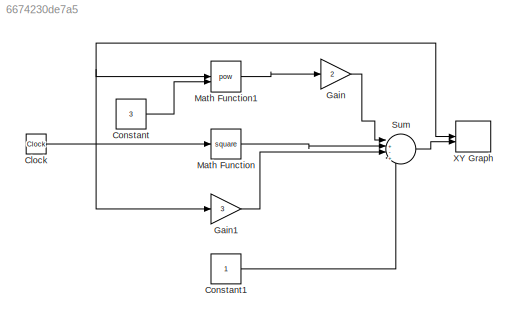
MODEL slx_6674230de7a5
KIND model
CONFIG AbsTol = auto
CONFIG EnableMultiTasking = off
CONFIG FixedStep = auto
CONFIG MaxStep = auto
CONFIG MinStep = auto
CONFIG RelTol = 1e-3
CONFIG SampleTimeConstraint = Unconstrained
CONFIG SolverName = VariableStepAuto
CONFIG StartTime = 0.0
CONFIG StopTime = 10.0
BLOCK [Clock] Clock
BLOCK [Constant] Constant
  Value = 3
BLOCK [Constant] Constant1
BLOCK [Gain] Gain
  Gain = 2
BLOCK [Gain] Gain1
  Gain = 3
BLOCK [Math] Math Function
  Operator = square
BLOCK [Math] Math Function1
  Operator = pow
BLOCK [Sum] Sum
  Inputs = |+-+-
BLOCK [Record] XY Graph
  CompatibilityTag = XY
  FileSettingsInternal = {"entries":[{"content":{"excelSettings":{"content":{},"type":"Streamout.ExcelSettings"}},"type":"Streamout.FileSettingStorage","uuid":""}],"packageUris":["http:\/\/schema.mathworks.com\/mf0\/streamout_blocks\/R2020a"],"version":"1.0"}
  Layout = [1 1]
  SignalsInternal = {"entries":[{"content":{"signals":[{"content":{"blockPath":[],"dimensions":[1],"domain":"","lineColor":"#a2142f","plots":[ 1 ],"port":1,"sid":[""],"signalID":1,"signalName":"Clock"},"type":"RecordBlkView.Signal","uuid":""},{"content":{"blockPath":[],"dimensions":[1],"domain":"","lineColor":"#139fff","plots":[ 1 ],"port":2,"sid":[""],"signalID":2,"signalName":"Sum"},"type":"RecordBlkView.Signal","u...<+154ch>
  VisualizationBindings = {"xyplotplugin":{"info":[{"series":[{"bindingParametersList":[{"parameter":"X-Axis","signalID":1,"signalName":"Clock"},{"parameter":"Y-Axis","signalID":2,"signalName":"Sum"}],"seriesID":0}],"subplotID":1}]}}
NET Clock:1 -> Gain1:1, Math Function1:1, Math Function:1, XY Graph:1
LINE Constant1:1 -> Sum:4
LINE Constant:1 -> Math Function1:2
LINE Gain1:1 -> Sum:3
LINE Gain:1 -> Sum:1
LINE Math Function1:1 -> Gain:1
LINE Math Function:1 -> Sum:2
LINE Sum:1 -> XY Graph:2
note: NET lines group one-source signal fan-out (src -> all destinations, sorted); 1:1 wires keep LINE
